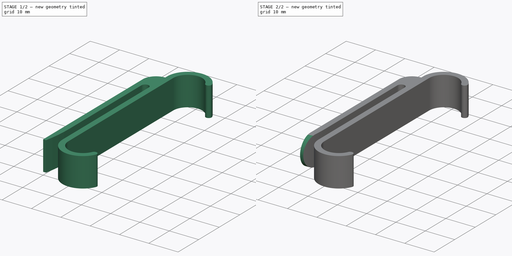
[diagram: build sequence overview — one tinted view per stage of 2, left to right]
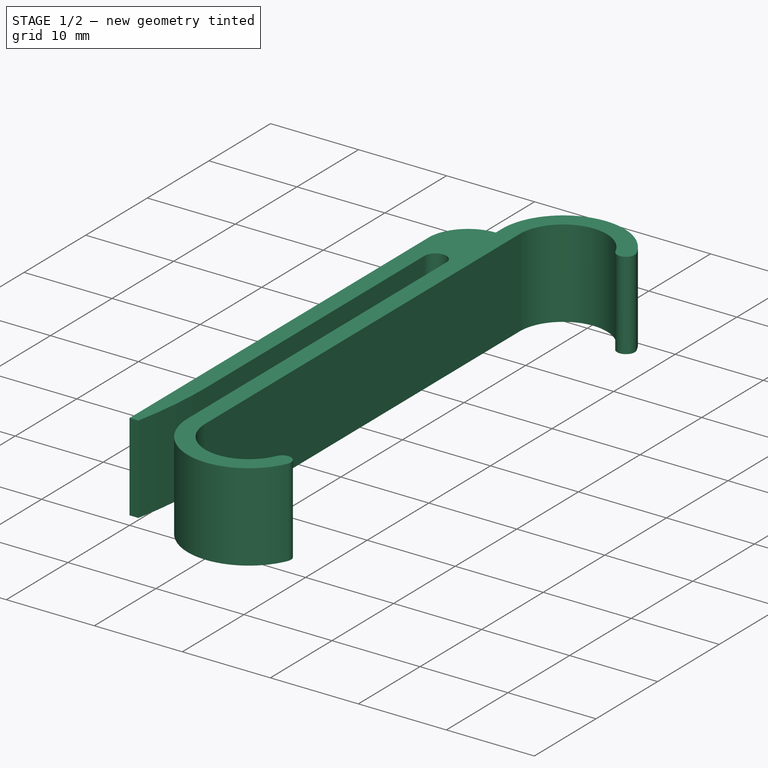
[diagram: stage 1 of 2 — iso view after this stage's code; geometry added in this stage tinted green]
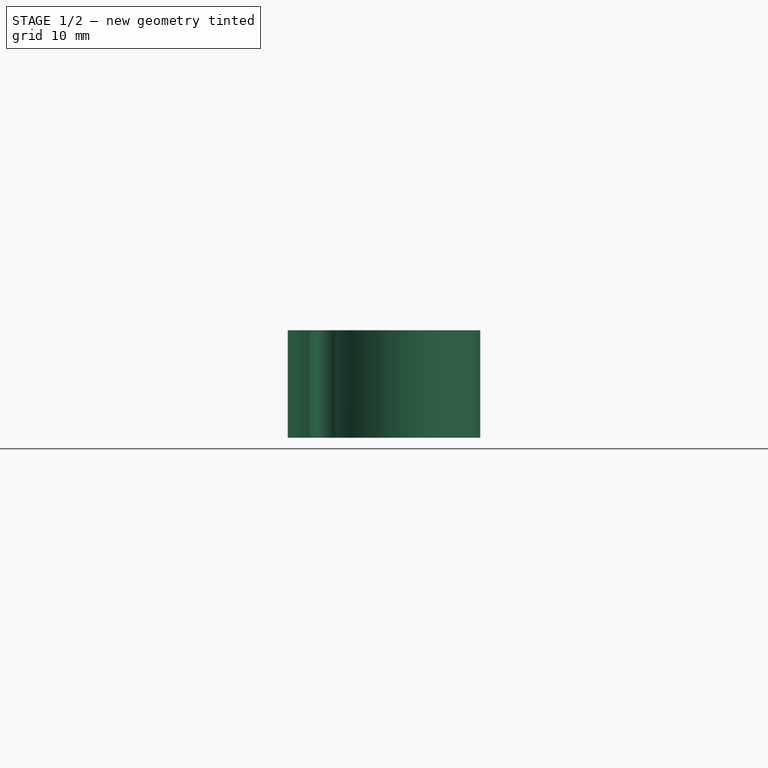
[diagram: stage 1 of 2 — front view after this stage's code; geometry added in this stage tinted green]
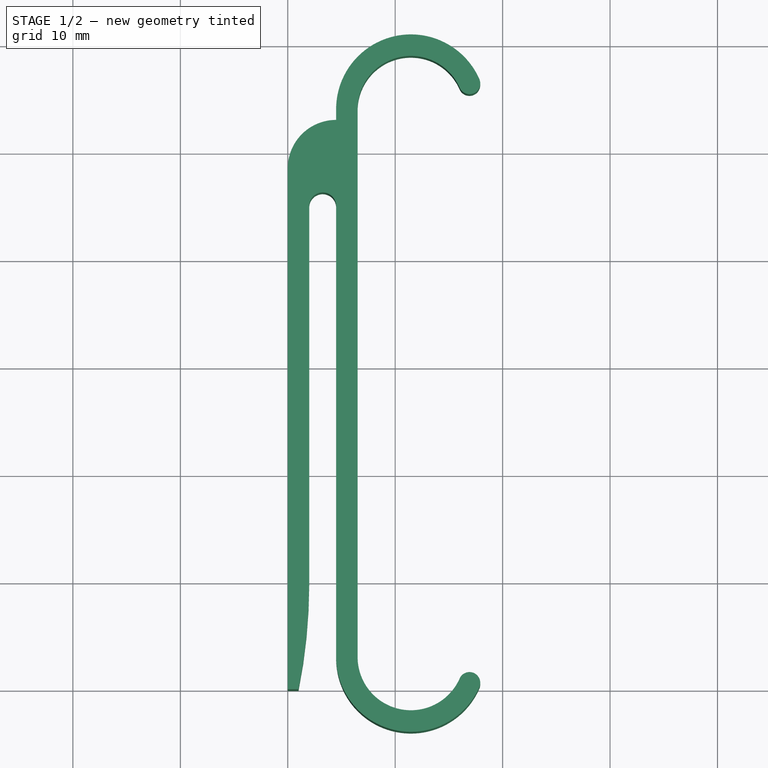
[diagram: stage 1 of 2 — top view after this stage's code; geometry added in this stage tinted green]
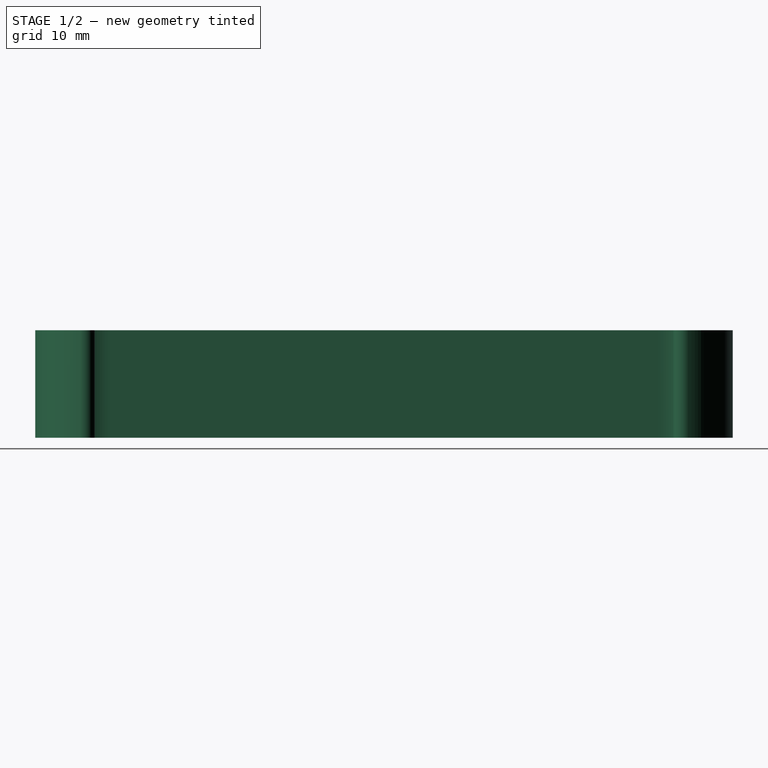
[diagram: stage 1 of 2 — right view after this stage's code; geometry added in this stage tinted green]
FCSTD DOCUMENT  (FreeCAD 0.18R16146 (Git))
Label: bt rx tx clip 2
License: All rights reserved
LicenseURL: http://en.wikipedia.org/wiki/All_rights_reserved
objects: Sketcher::SketchObject×2, PartDesign::Pad×1, PartDesign::Pocket×1, PartDesign::Body×1
note: 7 computed .brp shape members not serialized (recipe doc carries the construction recipe); baked Part::Feature solids carry a one-line shape summary decoded from their .brp

FEATURE [Sketcher::SketchObject] Sketch
  MapMode = 5
  Support = -> [XY_Plane]
  sketch-geometry (15):
    g0: LineSegment StartX=0 StartY=48.5 StartZ=0 EndX=0 EndY=0 EndZ=0
    g1: LineSegment StartX=2 StartY=10 StartZ=0 EndX=2 EndY=45 EndZ=0
    g2: ArcOfCircle CenterX=3.25 CenterY=45 CenterZ=0 NormalX=0 NormalY=0 NormalZ=1 AngleXU=0 Radius=1.25 StartAngle=2.9e-15 EndAngle=3.14159
    g3: ArcOfCircle CenterX=4.5 CenterY=48.5 CenterZ=0 NormalX=0 NormalY=0 NormalZ=1 AngleXU=0 Radius=4.5 StartAngle=1.5708 EndAngle=3.14159
    g4: LineSegment StartX=0 StartY=0 StartZ=0 EndX=1 EndY=0 EndZ=0
    g5: ArcOfCircle CenterX=11.4605 CenterY=54 CenterZ=0 NormalX=0 NormalY=0 NormalZ=1 AngleXU=0 Radius=6.96053 StartAngle=0.414992 EndAngle=3.14159
    g6: LineSegment StartX=6.5 StartY=54 StartZ=0 EndX=6.5 EndY=3 EndZ=0
    g7: ArcOfCircle CenterX=11.4605 CenterY=54 CenterZ=0 NormalX=0 NormalY=0 NormalZ=1 AngleXU=0 Radius=4.96053 StartAngle=0.414992 EndAngle=3.14159
    g8: ArcOfCircle CenterX=11.4605 CenterY=3 CenterZ=0 NormalX=0 NormalY=0 NormalZ=1 AngleXU=0 Radius=4.96053 StartAngle=3.14159 EndAngle=5.86819
    g9: ArcOfCircle CenterX=11.4605 CenterY=3 CenterZ=0 NormalX=0 NormalY=0 NormalZ=1 AngleXU=0 Radius=6.96053 StartAngle=3.14159 EndAngle=5.86819
    g10: LineSegment StartX=4.5 StartY=54 StartZ=0 EndX=4.5 EndY=53 EndZ=0
    g11: LineSegment StartX=4.5 StartY=45 StartZ=0 EndX=4.5 EndY=3 EndZ=0
    g12: ArcOfCircle CenterX=-48.5 CenterY=10 CenterZ=0 NormalX=0 NormalY=0 NormalZ=1 AngleXU=0 Radius=50.5 StartAngle=6.08385 EndAngle=6.28319
    g13: ArcOfCircle CenterX=16.9151 CenterY=56.4032 CenterZ=0 NormalX=0 NormalY=0 NormalZ=1 AngleXU=0 Radius=1 StartAngle=3.55659 EndAngle=6.69818
    g14: ArcOfCircle CenterX=16.9151 CenterY=0.596817 CenterZ=0 NormalX=0 NormalY=0 NormalZ=1 AngleXU=0 Radius=1 StartAngle=5.86819 EndAngle=9.00979
  constraints (39):
    c: Vertical(g1)
    c: DistanceY(g1,g1) = 35
    c: Coincident(g4,g0)
    c: Horizontal(g4)
    c: DistanceX(g4,g4) = 1
    c: DistanceX(g6,g7) = 9.5
    c: DistanceX(g6,g8) = 9.5
    c: DistanceY(g8,g6) = 2
    c: Tangent(g6,g8) = -1.5708
    c: Coincident(g10,g3)
    c: Vertical(g10)
    c: Vertical(g11)
    c: DistanceX(g5,g6) = 2
    c: Tangent(g2,g1) = 1.5708
    c: Vertical(g0)
    c: Tangent(g3,g0) = -1.5708
    c: Tangent(g2,g11) = 1.5708
    c: Tangent(g11,g9) = -1.5708
    c: DistanceX(g9,g6) = 2
    c: DistanceX(g0,g1) = 2
    c: DistanceX(g1,g9) = 2.5
    c: Perpendicular(g3,g10)
    c: Coincident(g5,g7)
    c: Tangent(g7,g6) = -1.5708
    c: Tangent(g10,g5) = -1.5708
    c: DistanceY(g6,g7) = 2
    c: Coincident(g8,g9)
    c: DistanceY(g6,g6) = 51
    c: DistanceY(g2,g3) = 8
    c: DistanceY(g10,g10) = 1
    c: Coincident(g12,g4)
    c: Tangent(g13,g7) = 1.5708
    c: Tangent(g13,g5) = -1.5708
    c: Tangent(g14,g8) = 1.5708
    c: Tangent(g14,g9) = -1.5708
    c: Coincident(g-1,g0)
    c: Tangent(g12,g1) = -1.5708
    c: Vertical(g2,g3)
    c: DistanceY(g4,g1) = 10
FEATURE [Sketcher::SketchObject] Sketch001
  MapMode = 5
  Placement = pos=(0,0,0) rot=(0.57735,-0.57735,-0.57735;2.0944rad)
  sketch-geometry (4):
    g0: ArcOfCircle CenterX=-5.43045 CenterY=5 CenterZ=0 NormalX=0 NormalY=0 NormalZ=1 AngleXU=0 Radius=5 StartAngle=4.71239 EndAngle=7.85398
    g1: LineSegment StartX=-5.43045 StartY=10 StartZ=0 EndX=44.5695 EndY=10 EndZ=0
    g2: LineSegment StartX=44.5695 StartY=10 StartZ=0 EndX=44.5695 EndY=0 EndZ=0
    g3: LineSegment StartX=44.5695 StartY=0 StartZ=0 EndX=-5.43045 EndY=0 EndZ=0
  constraints (12):
    c: Coincident(g0,g1)
    c: Coincident(g1,g2)
    c: Vertical(g2)
    c: Horizontal(g1)
    c: DistanceX(g1,g1) = 50
    c: Vertical(g0,g0)
    c: DistanceY(g2,g2) = 10
    c: Vertical(g0,g0)
    c: Coincident(g3,g2)
    c: Coincident(g3,g0)
    c: Horizontal(g3)
    c: Horizontal(g-1,g2)
FEATURE [PartDesign::Pad] Pad
  Length = 10
  Length2 = 100
  Profile = -> Sketch
  Type = 0
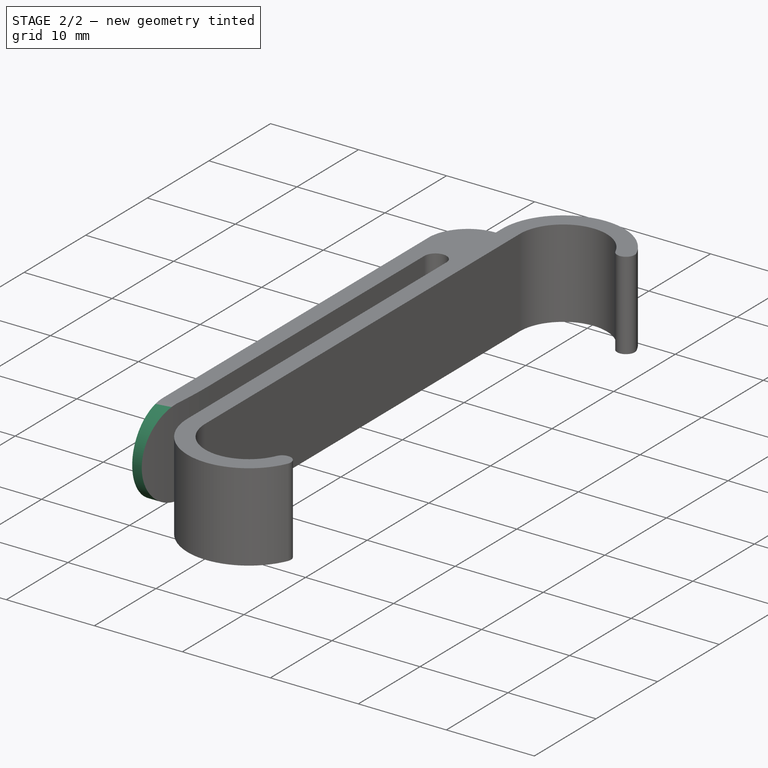
[diagram: stage 2 of 2 — iso view after this stage's code; geometry added in this stage tinted green]
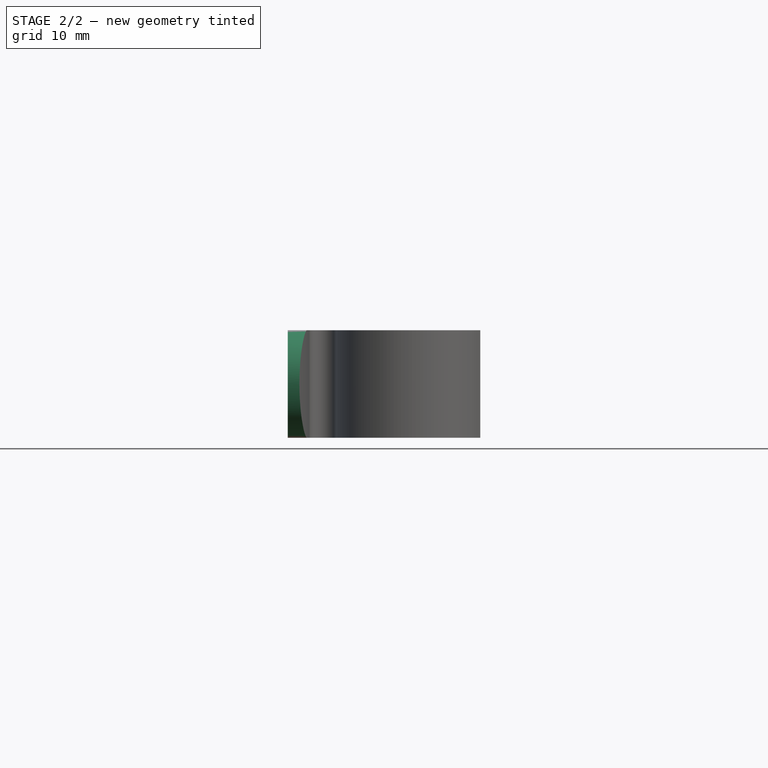
[diagram: stage 2 of 2 — front view after this stage's code; geometry added in this stage tinted green]
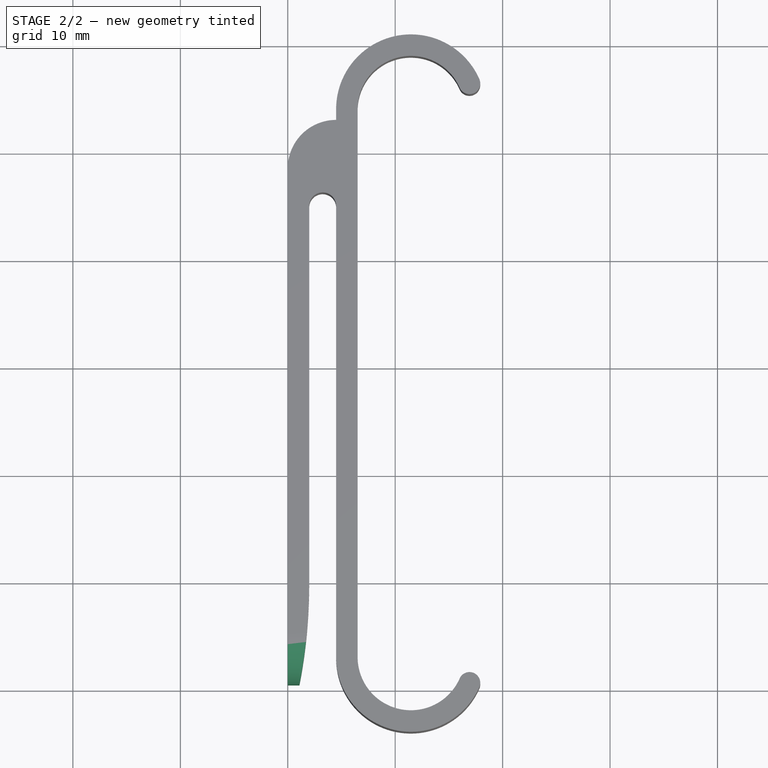
[diagram: stage 2 of 2 — top view after this stage's code; geometry added in this stage tinted green]
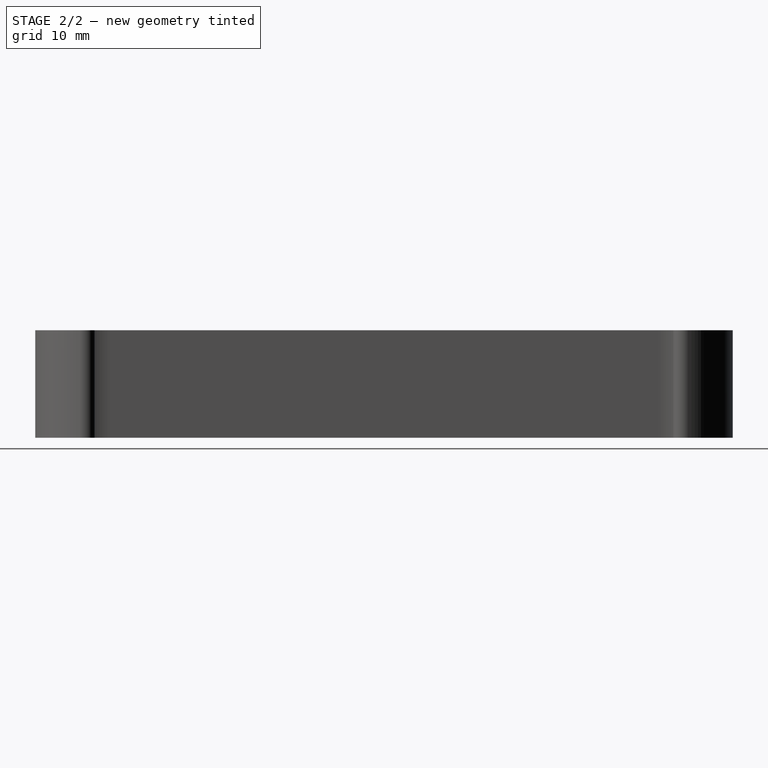
[diagram: stage 2 of 2 — right view after this stage's code; geometry added in this stage tinted green]
FEATURE [PartDesign::Pocket] Pocket
  BaseFeature = -> Pad
  Length = 4
  Length2 = 100
  Profile = -> Sketch001
  Type = 0
FEATURE [PartDesign::Body] Body
  Group = -> [Sketch,Sketch001,Pad,Pocket]
  Origin = -> Origin
  Tip = -> Pocket
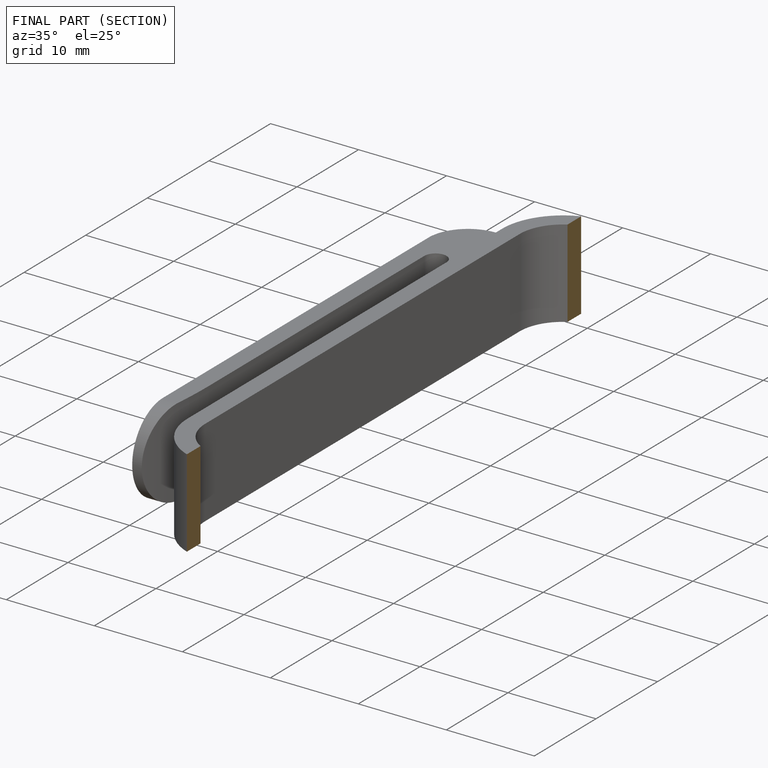
[diagram: finished part — half-section view (interior)]
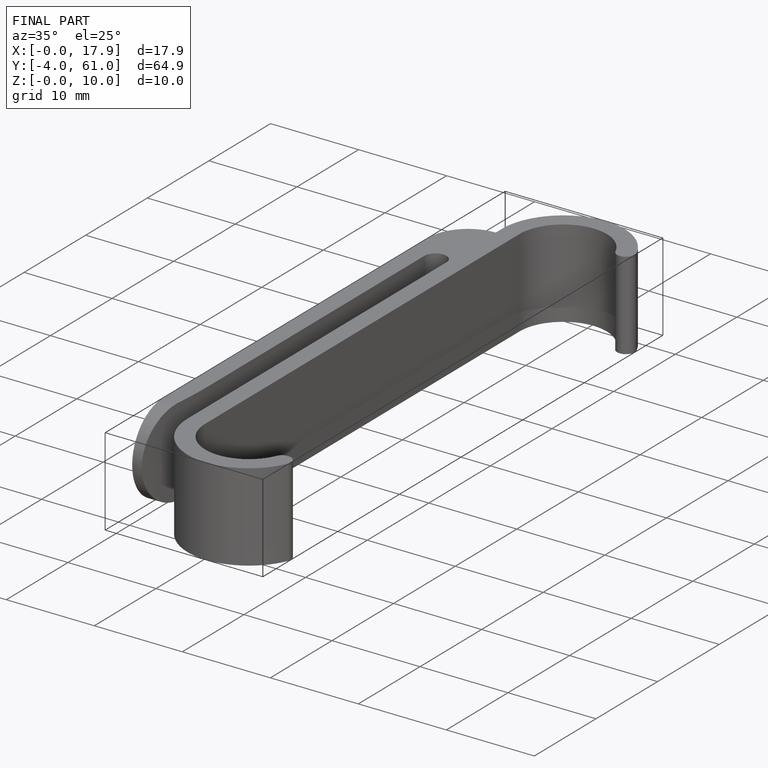
[diagram: finished part — iso view with bounding-box wireframe]
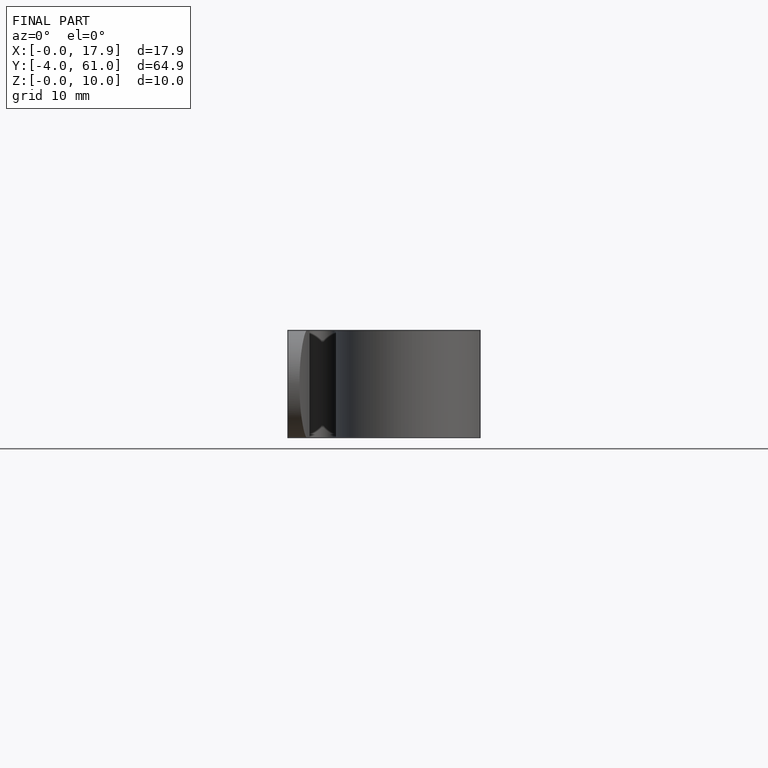
[diagram: finished part — front view with bounding-box wireframe]
